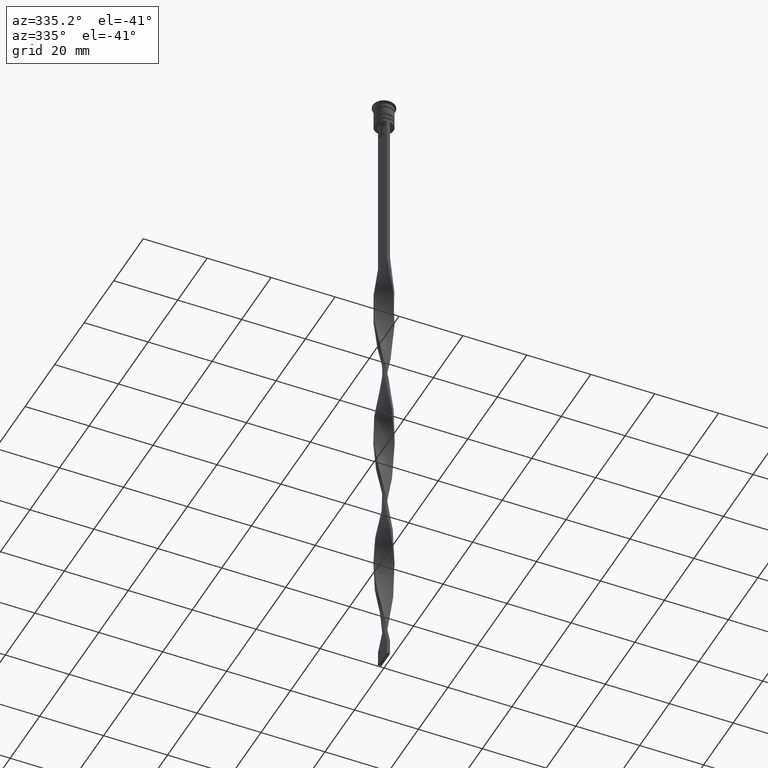
[diagram: clean part render]
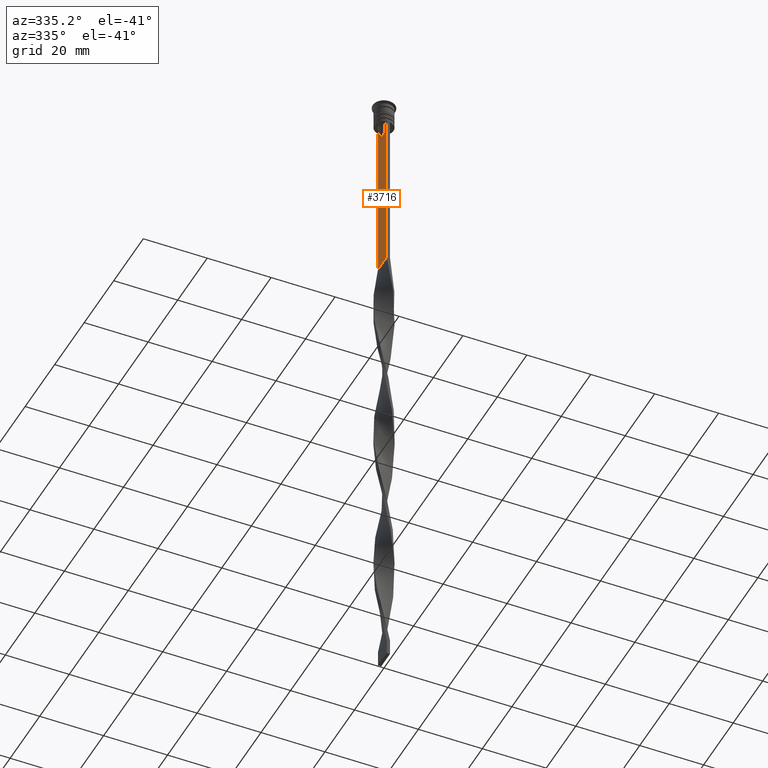
[diagram: same view with one face highlighted and labeled with its STEP entity id]
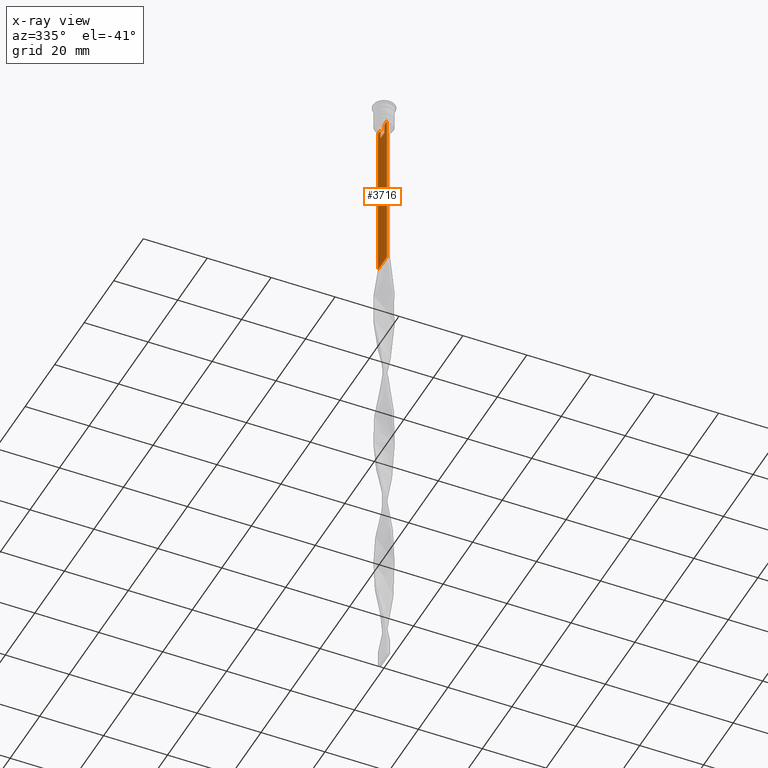
[diagram: x-ray of the same camera — body ghosted, the highlighted face saturated]
A machine part, auxiliary view. The second image highlights one B-rep face of the part: STEP entity #3716.
The next image is the same camera in x-ray: the body ghosted, the highlighted face saturated — about 0% of this face is hidden behind the body in this view.
In plain terms, the highlighted planar face has unit normal (-1, 0, 0).
Its self-contained STEP definition (entity closure, byte-faithful):
#142 = LINE ( 'NONE', #2745, #3322 ) ;
#169 = EDGE_CURVE ( 'NONE', #1413, #1786, #1905, .T. ) ;
#212 = LINE ( 'NONE', #249, #541 ) ;
#249 = CARTESIAN_POINT ( 'NONE',  ( -0.5000000000000001110, 1.307669683062199217, 0.000000000000000000 ) ) ;
#257 = LINE ( 'NONE', #1388, #2899 ) ;
#326 = VERTEX_POINT ( 'NONE', #2877 ) ;
#334 = VERTEX_POINT ( 'NONE', #1725 ) ;
#356 = EDGE_CURVE ( 'NONE', #1958, #2753, #257, .T. ) ;
#498 = CARTESIAN_POINT ( 'NONE',  ( -0.5000000000000001110, -3.000000000000000000, -1.417237469701779329 ) ) ;
#508 = DIRECTION ( 'NONE',  ( 0.000000000000000000, -1.000000000000000000, 0.000000000000000000 ) ) ;
#523 = CARTESIAN_POINT ( 'NONE',  ( -0.5000000000000001110, 1.307669683062199217, -8.000000000000000000 ) ) ;
#541 = VECTOR ( 'NONE', #3114, 1000.000000000000000 ) ;
#568 = CARTESIAN_POINT ( 'NONE',  ( -0.5000000000000001110, 1.307669683062199217, -10.49999999999999822 ) ) ;
#637 = ORIENTED_EDGE ( 'NONE', *, *, #1216, .F. ) ;
#643 = EDGE_LOOP ( 'NONE', ( #2331, #883, #1464, #961, #637, #2494, #1065, #1416, #1695, #679, #1980, #1685 ) ) ;
#656 = EDGE_CURVE ( 'NONE', #1543, #757, #2580, .T. ) ;
#679 = ORIENTED_EDGE ( 'NONE', *, *, #1027, .F. ) ;
#746 = EDGE_CURVE ( 'NONE', #757, #2409, #212, .T. ) ;
#757 = VERTEX_POINT ( 'NONE', #523 ) ;
#813 = CARTESIAN_POINT ( 'NONE',  ( -0.5000000000000001110, -3.000000000000000000, -1.417237469701779329 ) ) ;
#817 = LINE ( 'NONE', #1333, #2033 ) ;
#847 = CARTESIAN_POINT ( 'NONE',  ( -0.5000000000000001110, -3.000000000000000000, -7.500000000000000000 ) ) ;
#868 = DIRECTION ( 'NONE',  ( 0.000000000000000000, -1.000000000000000000, 0.000000000000000000 ) ) ;
#883 = ORIENTED_EDGE ( 'NONE', *, *, #2983, .F. ) ;
#961 = ORIENTED_EDGE ( 'NONE', *, *, #2344, .T. ) ;
#1018 = CARTESIAN_POINT ( 'NONE',  ( -0.5000000000000001110, 2.856571371417139904, -7.500000000000000000 ) ) ;
#1027 = EDGE_CURVE ( 'NONE', #2994, #1413, #142, .T. ) ;
#1030 = CARTESIAN_POINT ( 'NONE',  ( -0.5000000000000001110, -1.833030277982335532, -7.500000000000000000 ) ) ;
#1034 = LINE ( 'NONE', #1841, #1098 ) ;
#1052 = CARTESIAN_POINT ( 'NONE',  ( -0.5000000000000001110, -1.307669683062199217, -8.000000000000000000 ) ) ;
#1065 = ORIENTED_EDGE ( 'NONE', *, *, #3228, .F. ) ;
#1081 = CARTESIAN_POINT ( 'NONE',  ( -0.5000000000000001110, 1.659046061654642523, -7.667851756010361619 ) ) ;
#1083 = CARTESIAN_POINT ( 'NONE',  ( -0.5000000000000001110, -3.000000000000000000, -58.50000000000000000 ) ) ;
#1098 = VECTOR ( 'NONE', #1899, 1000.000000000000000 ) ;
#1124 = DIRECTION ( 'NONE',  ( 0.000000000000000000, 0.000000000000000000, -1.000000000000000000 ) ) ;
#1216 = EDGE_CURVE ( 'NONE', #3203, #3543, #2514, .T. ) ;
#1228 = CARTESIAN_POINT ( 'NONE',  ( -0.5000000000000001110, -1.307669683062199217, -10.49999999999999822 ) ) ;
#1239 = CARTESIAN_POINT ( 'NONE',  ( -0.5000000000000001110, 3.000000000000000000, -58.50000000000000000 ) ) ;
#1333 = CARTESIAN_POINT ( 'NONE',  ( -0.5000000000000001110, 3.000000000000000000, -1.417237469701779329 ) ) ;
#1348 = CARTESIAN_POINT ( 'NONE',  ( -0.5000000000000001110, 1.307669683062199217, -8.000000000000000000 ) ) ;
#1388 = CARTESIAN_POINT ( 'NONE',  ( -0.5000000000000001110, -3.000000000000000000, -7.500000000000000000 ) ) ;
#1404 = DIRECTION ( 'NONE',  ( -1.000000000000000000, 0.000000000000000000, 0.000000000000000000 ) ) ;
#1413 = VERTEX_POINT ( 'NONE', #2888 ) ;
#1416 = ORIENTED_EDGE ( 'NONE', *, *, #1472, .F. ) ;
#1444 = DIRECTION ( 'NONE',  ( 0.000000000000000000, 1.000000000000000000, 0.000000000000000000 ) ) ;
#1448 = LINE ( 'NONE', #3481, #2275 ) ;
#1464 = ORIENTED_EDGE ( 'NONE', *, *, #356, .F. ) ;
#1472 = EDGE_CURVE ( 'NONE', #1786, #334, #1809, .T. ) ;
#1543 = VERTEX_POINT ( 'NONE', #1732 ) ;
#1556 = VECTOR ( 'NONE', #3639, 1000.000000000000000 ) ;
#1675 = EDGE_CURVE ( 'NONE', #2409, #2994, #1034, .T. ) ;
#1685 = ORIENTED_EDGE ( 'NONE', *, *, #746, .F. ) ;
#1695 = ORIENTED_EDGE ( 'NONE', *, *, #169, .F. ) ;
#1725 = CARTESIAN_POINT ( 'NONE',  ( -0.5000000000000001110, -2.856571371417139904, -7.500000000000000000 ) ) ;
#1732 = CARTESIAN_POINT ( 'NONE',  ( -0.5000000000000001110, 1.833030277982335532, -7.500000000000000000 ) ) ;
#1786 = VERTEX_POINT ( 'NONE', #3031 ) ;
#1799 = AXIS2_PLACEMENT_3D ( 'NONE', #813, #1404, #1966 ) ;
#1809 = LINE ( 'NONE', #2661, #2422 ) ;
#1841 = CARTESIAN_POINT ( 'NONE',  ( -0.5000000000000001110, 1.399999999999997691, -10.49999999999999822 ) ) ;
#1892 = DIRECTION ( 'NONE',  ( -0.000000000000000000, -0.000000000000000000, 1.000000000000000000 ) ) ;
#1899 = DIRECTION ( 'NONE',  ( 0.000000000000000000, -1.000000000000000000, 0.000000000000000000 ) ) ;
#1903 = LINE ( 'NONE', #498, #1556 ) ;
#1905 = B_SPLINE_CURVE_WITH_KNOTS ( 'NONE', 3,
 ( #1052, #2199, #2991, #1030 ),
 .UNSPECIFIED., .F., .F.,
 ( 4, 4 ),
 ( 0.007225659348748070081, 0.007950554640278040958 ),
 .UNSPECIFIED. ) ;
#1958 = VERTEX_POINT ( 'NONE', #2863 ) ;
#1966 = DIRECTION ( 'NONE',  ( 0.000000000000000000, 0.000000000000000000, 1.000000000000000000 ) ) ;
#1980 = ORIENTED_EDGE ( 'NONE', *, *, #1675, .F. ) ;
#2033 = VECTOR ( 'NONE', #1124, 1000.000000000000000 ) ;
#2153 = VECTOR ( 'NONE', #868, 1000.000000000000000 ) ;
#2199 = CARTESIAN_POINT ( 'NONE',  ( -0.5000000000000001110, -1.484307477388859153, -7.835011508197190722 ) ) ;
#2265 = CARTESIAN_POINT ( 'NONE',  ( -0.5000000000000001110, 1.484355510416485391, -7.834966642958598015 ) ) ;
#2275 = VECTOR ( 'NONE', #2954, 1000.000000000000000 ) ;
#2312 = CARTESIAN_POINT ( 'NONE',  ( -0.5000000000000001110, -3.000000000000000000, -58.50000000000000000 ) ) ;
#2331 = ORIENTED_EDGE ( 'NONE', *, *, #656, .F. ) ;
#2344 = EDGE_CURVE ( 'NONE', #1958, #3543, #817, .T. ) ;
#2409 = VERTEX_POINT ( 'NONE', #568 ) ;
#2420 = VECTOR ( 'NONE', #1444, 1000.000000000000000 ) ;
#2422 = VECTOR ( 'NONE', #3229, 1000.000000000000000 ) ;
#2494 = ORIENTED_EDGE ( 'NONE', *, *, #2853, .F. ) ;
#2497 = FACE_OUTER_BOUND ( 'NONE', #643, .T. ) ;
#2514 = LINE ( 'NONE', #1083, #2420 ) ;
#2580 = B_SPLINE_CURVE_WITH_KNOTS ( 'NONE', 3,
 ( #3643, #1081, #2265, #1348 ),
 .UNSPECIFIED., .F., .F.,
 ( 4, 4 ),
 ( 0.003278537493109840491, 0.004003794023484932504 ),
 .UNSPECIFIED. ) ;
#2661 = CARTESIAN_POINT ( 'NONE',  ( -0.5000000000000001110, -3.000000000000000000, -7.500000000000000000 ) ) ;
#2745 = CARTESIAN_POINT ( 'NONE',  ( -0.5000000000000001110, -1.307669683062199217, 0.000000000000000000 ) ) ;
#2753 = VERTEX_POINT ( 'NONE', #1018 ) ;
#2853 = EDGE_CURVE ( 'NONE', #326, #3203, #1903, .T. ) ;
#2863 = CARTESIAN_POINT ( 'NONE',  ( -0.5000000000000001110, 3.000000000000000000, -7.500000000000000000 ) ) ;
#2877 = CARTESIAN_POINT ( 'NONE',  ( -0.5000000000000001110, -3.000000000000000000, -7.500000000000000000 ) ) ;
#2888 = CARTESIAN_POINT ( 'NONE',  ( -0.5000000000000001110, -1.307669683062199217, -8.000000000000000000 ) ) ;
#2899 = VECTOR ( 'NONE', #508, 1000.000000000000000 ) ;
#2954 = DIRECTION ( 'NONE',  ( 0.000000000000000000, -1.000000000000000000, 0.000000000000000000 ) ) ;
#2983 = EDGE_CURVE ( 'NONE', #2753, #1543, #3453, .T. ) ;
#2991 = CARTESIAN_POINT ( 'NONE',  ( -0.5000000000000001110, -1.659011726860414093, -7.667884880598472286 ) ) ;
#2994 = VERTEX_POINT ( 'NONE', #1228 ) ;
#3031 = CARTESIAN_POINT ( 'NONE',  ( -0.5000000000000001110, -1.833030277982335532, -7.500000000000000000 ) ) ;
#3114 = DIRECTION ( 'NONE',  ( 0.000000000000000000, 0.000000000000000000, -1.000000000000000000 ) ) ;
#3203 = VERTEX_POINT ( 'NONE', #2312 ) ;
#3228 = EDGE_CURVE ( 'NONE', #334, #326, #1448, .T. ) ;
#3229 = DIRECTION ( 'NONE',  ( 0.000000000000000000, -1.000000000000000000, 0.000000000000000000 ) ) ;
#3322 = VECTOR ( 'NONE', #1892, 1000.000000000000000 ) ;
#3399 = PLANE ( 'NONE',  #1799 ) ;
#3453 = LINE ( 'NONE', #847, #2153 ) ;
#3481 = CARTESIAN_POINT ( 'NONE',  ( -0.5000000000000001110, -3.000000000000000000, -7.500000000000000000 ) ) ;
#3543 = VERTEX_POINT ( 'NONE', #1239 ) ;
#3639 = DIRECTION ( 'NONE',  ( 0.000000000000000000, 0.000000000000000000, -1.000000000000000000 ) ) ;
#3643 = CARTESIAN_POINT ( 'NONE',  ( -0.5000000000000001110, 1.833030277982335532, -7.500000000000000000 ) ) ;
#3716 = ADVANCED_FACE ( 'NONE', ( #2497 ), #3399, .T. ) ;